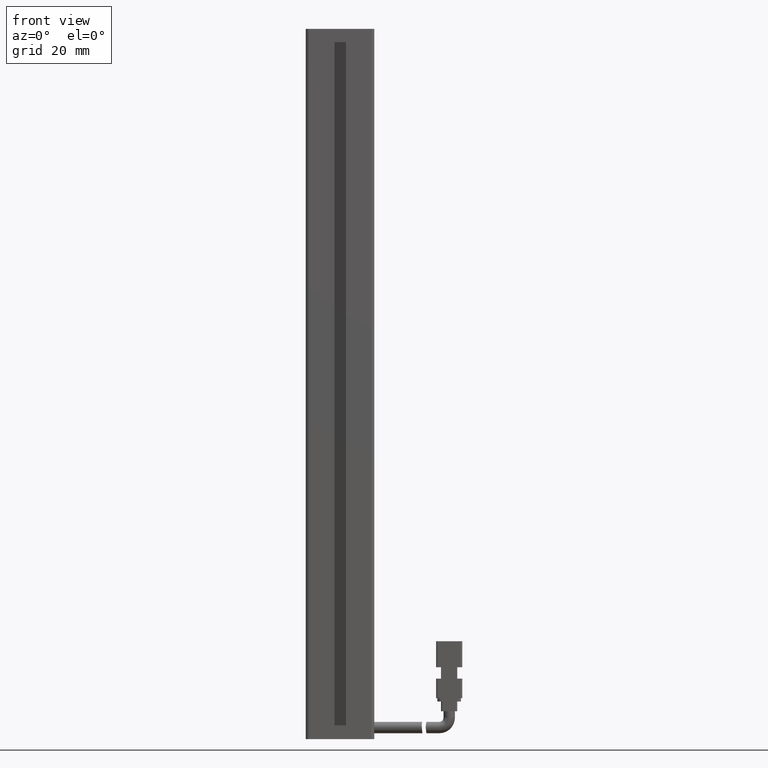
[diagram: clean part render]
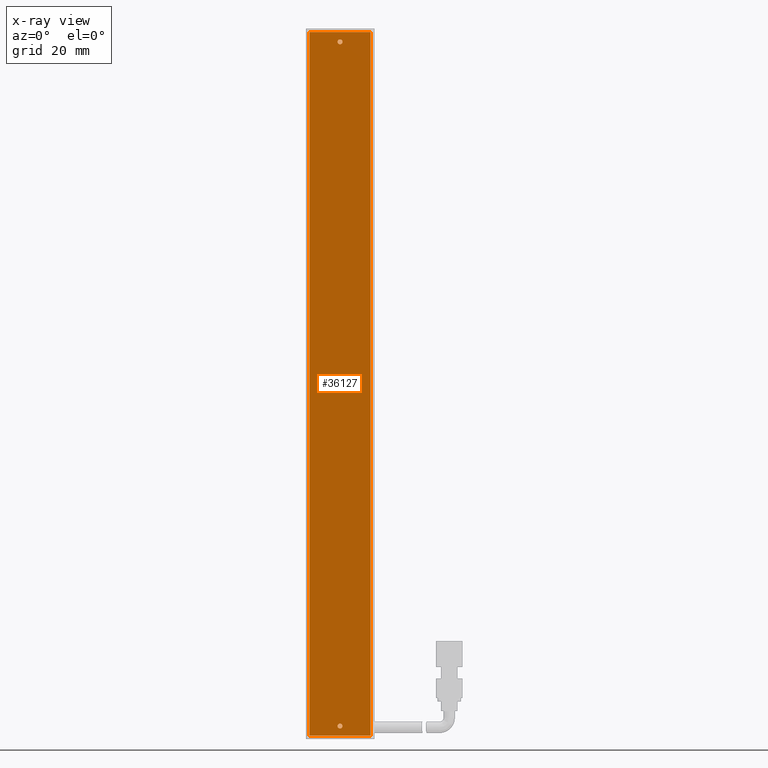
[diagram: x-ray — body ghosted, one internal face saturated and labeled with its STEP entity id]
A machine part, front view, then the same camera in x-ray: the body is ghosted and one INTERNAL B-rep face — a face not visible from any outside direction — is saturated and labeled: STEP entity #36127.
In plain terms, the highlighted planar face has unit normal (-0, 1, 0).
Its self-contained STEP definition (entity closure, byte-faithful):
#285 = CIRCLE ( 'NONE', #22093, 0.7500000000000006700 ) ;
#521 = LINE ( 'NONE', #17805, #29978 ) ;
#553 = CARTESIAN_POINT ( 'NONE',  ( 50.27537974683542600, 32.09073232304837100, -7.000000000000006200 ) ) ;
#1070 = CIRCLE ( 'NONE', #28757, 0.7500000000000006700 ) ;
#1171 = CARTESIAN_POINT ( 'NONE',  ( 40.92537974683539700, 32.09073232304837100, -219.2500000000000000 ) ) ;
#2142 = CARTESIAN_POINT ( 'NONE',  ( 31.57537974683539900, 32.09073232304837100, -223.0000000000000000 ) ) ;
#2431 = VERTEX_POINT ( 'NONE', #27602 ) ;
#3422 = ORIENTED_EDGE ( 'NONE', *, *, #36272, .F. ) ;
#4406 = LINE ( 'NONE', #51436, #16071 ) ;
#4730 = DIRECTION ( 'NONE',  ( -0.0000000000000000000, 1.000000000000000000, 0.0000000000000000000 ) ) ;
#5223 = VERTEX_POINT ( 'NONE', #31704 ) ;
#6364 = CARTESIAN_POINT ( 'NONE',  ( 50.27537974683540500, 32.09073232304837100, -223.0000000000000000 ) ) ;
#11122 = ORIENTED_EDGE ( 'NONE', *, *, #26585, .F. ) ;
#11870 = VERTEX_POINT ( 'NONE', #29878 ) ;
#13127 = VERTEX_POINT ( 'NONE', #41750 ) ;
#13733 = DIRECTION ( 'NONE',  ( -1.548860246407863500E-017, -0.0000000000000000000, -1.000000000000000000 ) ) ;
#14421 = DIRECTION ( 'NONE',  ( 0.0000000000000000000, 0.0000000000000000000, 1.000000000000000000 ) ) ;
#14653 = FACE_BOUND ( 'NONE', #19063, .T. ) ;
#16071 = VECTOR ( 'NONE', #26251, 1000.000000000000000 ) ;
#16583 = FACE_BOUND ( 'NONE', #42835, .T. ) ;
#16953 = LINE ( 'NONE', #50759, #46679 ) ;
#17213 = DIRECTION ( 'NONE',  ( 1.000000000000000000, 0.0000000000000000000, -1.548860246407863500E-017 ) ) ;
#17805 = CARTESIAN_POINT ( 'NONE',  ( 50.27537974683542600, 32.09073232304837100, -7.000000000000006200 ) ) ;
#17987 = EDGE_CURVE ( 'NONE', #26393, #48856, #285, .T. ) ;
#19063 = EDGE_LOOP ( 'NONE', ( #22943, #36812 ) ) ;
#19494 = CARTESIAN_POINT ( 'NONE',  ( 40.92537974683541800, 32.09073232304837100, -10.00000000000000900 ) ) ;
#19703 = EDGE_CURVE ( 'NONE', #5223, #53019, #521, .T. ) ;
#20383 = DIRECTION ( 'NONE',  ( 0.0000000000000000000, 0.0000000000000000000, 1.000000000000000000 ) ) ;
#21105 = DIRECTION ( 'NONE',  ( 0.0000000000000000000, 0.0000000000000000000, 1.000000000000000000 ) ) ;
#22093 = AXIS2_PLACEMENT_3D ( 'NONE', #45654, #29233, #20383 ) ;
#22943 = ORIENTED_EDGE ( 'NONE', *, *, #24358, .F. ) ;
#23218 = DIRECTION ( 'NONE',  ( -0.0000000000000000000, -1.000000000000000000, -0.0000000000000000000 ) ) ;
#23290 = DIRECTION ( 'NONE',  ( -0.0000000000000000000, -1.000000000000000000, -0.0000000000000000000 ) ) ;
#24358 = EDGE_CURVE ( 'NONE', #2431, #11870, #34152, .T. ) ;
#24512 = EDGE_CURVE ( 'NONE', #13127, #5223, #16953, .T. ) ;
#25436 = ORIENTED_EDGE ( 'NONE', *, *, #24512, .F. ) ;
#25592 = PLANE ( 'NONE',  #52318 ) ;
#25779 = DIRECTION ( 'NONE',  ( 1.548860246407863500E-017, 0.0000000000000000000, 1.000000000000000000 ) ) ;
#26251 = DIRECTION ( 'NONE',  ( -1.000000000000000000, -0.0000000000000000000, 1.548860246407863500E-017 ) ) ;
#26393 = VERTEX_POINT ( 'NONE', #49987 ) ;
#26462 = AXIS2_PLACEMENT_3D ( 'NONE', #50040, #54084, #21105 ) ;
#26585 = EDGE_CURVE ( 'NONE', #48856, #26393, #45108, .T. ) ;
#27602 = CARTESIAN_POINT ( 'NONE',  ( 40.92537974683541800, 32.09073232304837100, -9.250000000000008900 ) ) ;
#28757 = AXIS2_PLACEMENT_3D ( 'NONE', #19494, #23218, #49012 ) ;
#29233 = DIRECTION ( 'NONE',  ( -0.0000000000000000000, -1.000000000000000000, -0.0000000000000000000 ) ) ;
#29878 = CARTESIAN_POINT ( 'NONE',  ( 40.92537974683541800, 32.09073232304837100, -10.75000000000000900 ) ) ;
#29978 = VECTOR ( 'NONE', #13733, 1000.000000000000000 ) ;
#31140 = VECTOR ( 'NONE', #40539, 1000.000000000000000 ) ;
#31704 = CARTESIAN_POINT ( 'NONE',  ( 50.27537974683542600, 32.09073232304837100, -7.000000000000006200 ) ) ;
#32044 = CARTESIAN_POINT ( 'NONE',  ( 31.57537974683539900, 32.09073232304837100, -7.000000000000006200 ) ) ;
#33317 = EDGE_CURVE ( 'NONE', #53019, #49248, #4406, .T. ) ;
#34152 = CIRCLE ( 'NONE', #26462, 0.7500000000000006700 ) ;
#36127 = ADVANCED_FACE ( 'NONE', ( #50245, #14653, #16583 ), #25592, .F. ) ;
#36272 = EDGE_CURVE ( 'NONE', #49248, #13127, #44320, .T. ) ;
#36812 = ORIENTED_EDGE ( 'NONE', *, *, #43746, .F. ) ;
#40389 = AXIS2_PLACEMENT_3D ( 'NONE', #48214, #23290, #14421 ) ;
#40462 = EDGE_LOOP ( 'NONE', ( #3422, #49336, #44085, #25436 ) ) ;
#40539 = DIRECTION ( 'NONE',  ( 1.548860246407863500E-017, 0.0000000000000000000, 1.000000000000000000 ) ) ;
#41750 = CARTESIAN_POINT ( 'NONE',  ( 31.57537974683542000, 32.09073232304837100, -7.000000000000006200 ) ) ;
#42835 = EDGE_LOOP ( 'NONE', ( #11122, #53608 ) ) ;
#43746 = EDGE_CURVE ( 'NONE', #11870, #2431, #1070, .T. ) ;
#44085 = ORIENTED_EDGE ( 'NONE', *, *, #19703, .F. ) ;
#44320 = LINE ( 'NONE', #32044, #31140 ) ;
#45108 = CIRCLE ( 'NONE', #40389, 0.7500000000000006700 ) ;
#45654 = CARTESIAN_POINT ( 'NONE',  ( 40.92537974683539700, 32.09073232304837100, -220.0000000000000000 ) ) ;
#46679 = VECTOR ( 'NONE', #17213, 1000.000000000000000 ) ;
#48214 = CARTESIAN_POINT ( 'NONE',  ( 40.92537974683539700, 32.09073232304837100, -220.0000000000000000 ) ) ;
#48856 = VERTEX_POINT ( 'NONE', #1171 ) ;
#49012 = DIRECTION ( 'NONE',  ( 0.0000000000000000000, 0.0000000000000000000, 1.000000000000000000 ) ) ;
#49248 = VERTEX_POINT ( 'NONE', #2142 ) ;
#49336 = ORIENTED_EDGE ( 'NONE', *, *, #33317, .F. ) ;
#49987 = CARTESIAN_POINT ( 'NONE',  ( 40.92537974683539700, 32.09073232304837100, -220.7500000000000000 ) ) ;
#50040 = CARTESIAN_POINT ( 'NONE',  ( 40.92537974683541800, 32.09073232304837100, -10.00000000000000900 ) ) ;
#50245 = FACE_OUTER_BOUND ( 'NONE', #40462, .T. ) ;
#50759 = CARTESIAN_POINT ( 'NONE',  ( 50.27537974683542600, 32.09073232304837100, -7.000000000000006200 ) ) ;
#51436 = CARTESIAN_POINT ( 'NONE',  ( 50.27537974683541900, 32.09073232304837100, -223.0000000000000000 ) ) ;
#52318 = AXIS2_PLACEMENT_3D ( 'NONE', #553, #4730, #25779 ) ;
#53019 = VERTEX_POINT ( 'NONE', #6364 ) ;
#53608 = ORIENTED_EDGE ( 'NONE', *, *, #17987, .F. ) ;
#54084 = DIRECTION ( 'NONE',  ( -0.0000000000000000000, -1.000000000000000000, -0.0000000000000000000 ) ) ;